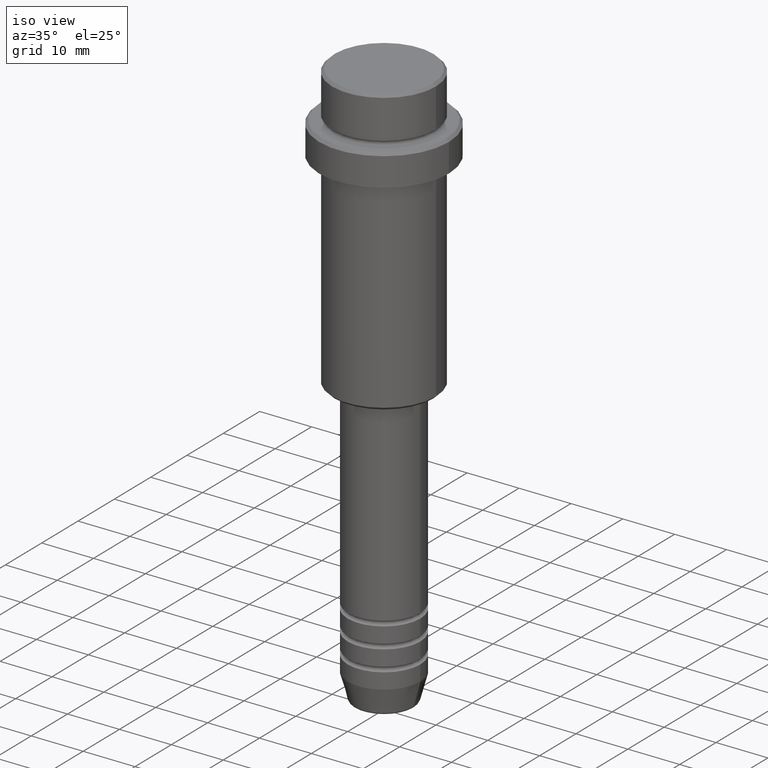
[diagram: clean part render]
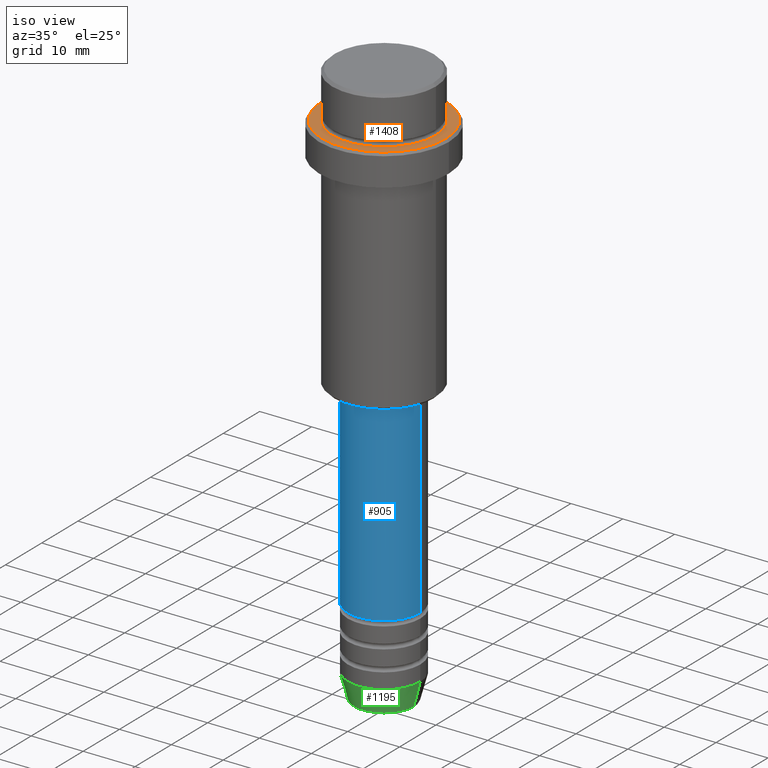
[diagram: same view with three faces highlighted in distinct colors, each labeled with its STEP entity id]
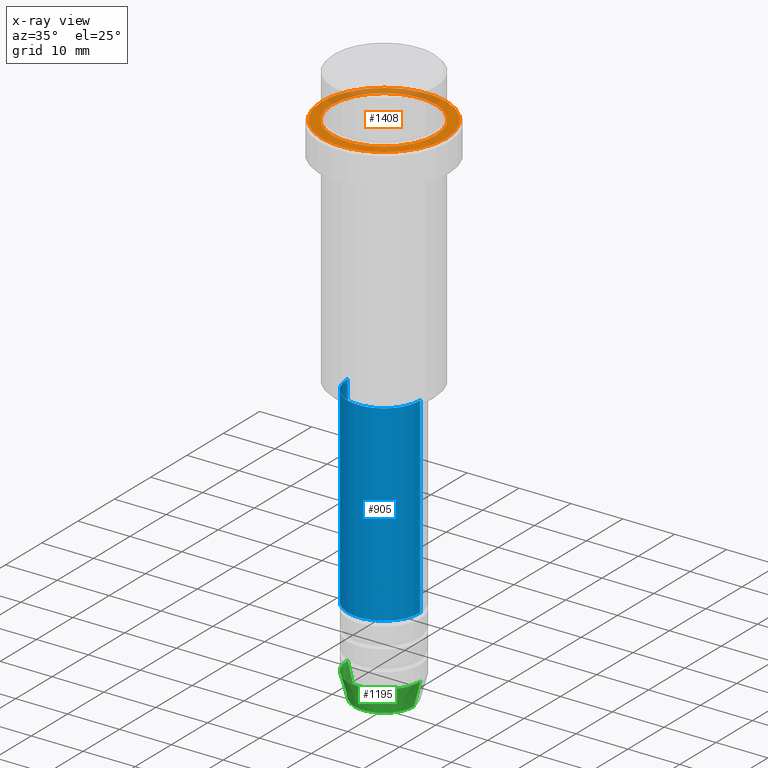
[diagram: x-ray of the same camera — body ghosted, the three highlighted faces saturated]
A machine part, iso view with three faces highlighted in distinct colors.
The next image is the same camera in x-ray (body ghosted, the three faces saturated) — at least one of them is partly hidden behind the body in this view.
Their STEP definitions:

[orange] entity #1408 — the highlighted planar face has unit normal (0, -0, 1).
#121 = ORIENTED_EDGE ( 'NONE', *, *, #700, .T. ) ;
#134 = CIRCLE ( 'NONE', #404, 9.999999999999994671 ) ;
#183 = VERTEX_POINT ( 'NONE', #1393 ) ;
#227 = CARTESIAN_POINT ( 'NONE',  ( 0.000000000000000000, 0.000000000000000000, -9.000000000000001776 ) ) ;
#273 = CIRCLE ( 'NONE', #809, 11.99999999999999645 ) ;
#305 = DIRECTION ( 'NONE',  ( 0.000000000000000000, 0.000000000000000000, -1.000000000000000000 ) ) ;
#350 = ORIENTED_EDGE ( 'NONE', *, *, #1262, .T. ) ;
#367 = DIRECTION ( 'NONE',  ( 1.000000000000000000, 0.000000000000000000, 0.000000000000000000 ) ) ;
#370 = CARTESIAN_POINT ( 'NONE',  ( 0.000000000000000000, 9.499999999999994671, -9.000000000000001776 ) ) ;
#404 = AXIS2_PLACEMENT_3D ( 'NONE', #227, #749, #1093 ) ;
#422 = CIRCLE ( 'NONE', #1137, 9.999999999999994671 ) ;
#500 = CARTESIAN_POINT ( 'NONE',  ( 0.000000000000000000, 0.000000000000000000, -9.000000000000001776 ) ) ;
#510 = DIRECTION ( 'NONE',  ( -0.000000000000000000, -0.000000000000000000, 1.000000000000000000 ) ) ;
#530 = ORIENTED_EDGE ( 'NONE', *, *, #928, .T. ) ;
#561 = DIRECTION ( 'NONE',  ( 1.000000000000000000, 0.000000000000000000, 0.000000000000000000 ) ) ;
#605 = AXIS2_PLACEMENT_3D ( 'NONE', #1156, #510, #1058 ) ;
#666 = FACE_BOUND ( 'NONE', #1019, .T. ) ;
#700 = EDGE_CURVE ( 'NONE', #897, #183, #422, .T. ) ;
#701 = CARTESIAN_POINT ( 'NONE',  ( 0.000000000000000000, 0.000000000000000000, -9.000000000000001776 ) ) ;
#749 = DIRECTION ( 'NONE',  ( 0.000000000000000000, 0.000000000000000000, -1.000000000000000000 ) ) ;
#755 = VERTEX_POINT ( 'NONE', #846 ) ;
#784 = CARTESIAN_POINT ( 'NONE',  ( 9.999999999999994671, 0.000000000000000000, -9.000000000000001776 ) ) ;
#809 = AXIS2_PLACEMENT_3D ( 'NONE', #701, #1144, #367 ) ;
#846 = CARTESIAN_POINT ( 'NONE',  ( 11.99999999999999645, 1.500192328955507537E-15, -9.000000000000001776 ) ) ;
#897 = VERTEX_POINT ( 'NONE', #784 ) ;
#928 = EDGE_CURVE ( 'NONE', #1042, #755, #273, .T. ) ;
#948 = DIRECTION ( 'NONE',  ( 1.000000000000000000, 0.000000000000000000, 0.000000000000000000 ) ) ;
#1019 = EDGE_LOOP ( 'NONE', ( #121, #350 ) ) ;
#1042 = VERTEX_POINT ( 'NONE', #1285 ) ;
#1058 = DIRECTION ( 'NONE',  ( 1.000000000000000000, 0.000000000000000000, 0.000000000000000000 ) ) ;
#1088 = EDGE_CURVE ( 'NONE', #755, #1042, #1223, .T. ) ;
#1093 = DIRECTION ( 'NONE',  ( 1.000000000000000000, 0.000000000000000000, 0.000000000000000000 ) ) ;
#1115 = PLANE ( 'NONE',  #1371 ) ;
#1137 = AXIS2_PLACEMENT_3D ( 'NONE', #500, #305, #948 ) ;
#1144 = DIRECTION ( 'NONE',  ( -0.000000000000000000, -0.000000000000000000, 1.000000000000000000 ) ) ;
#1156 = CARTESIAN_POINT ( 'NONE',  ( 0.000000000000000000, 0.000000000000000000, -9.000000000000001776 ) ) ;
#1223 = CIRCLE ( 'NONE', #605, 11.99999999999999645 ) ;
#1236 = DIRECTION ( 'NONE',  ( 0.000000000000000000, -0.000000000000000000, 1.000000000000000000 ) ) ;
#1262 = EDGE_CURVE ( 'NONE', #183, #897, #134, .T. ) ;
#1285 = CARTESIAN_POINT ( 'NONE',  ( -11.99999999999999645, 0.000000000000000000, -9.000000000000001776 ) ) ;
#1303 = EDGE_LOOP ( 'NONE', ( #530, #1333 ) ) ;
#1333 = ORIENTED_EDGE ( 'NONE', *, *, #1088, .T. ) ;
#1352 = FACE_OUTER_BOUND ( 'NONE', #1303, .T. ) ;
#1371 = AXIS2_PLACEMENT_3D ( 'NONE', #370, #1236, #561 ) ;
#1393 = CARTESIAN_POINT ( 'NONE',  ( -9.999999999999994671, 1.224646799147352665E-15, -9.000000000000001776 ) ) ;
#1408 = ADVANCED_FACE ( 'NONE', ( #1352, #666 ), #1115, .T. ) ;

[blue] entity #905 — the highlighted cylindrical surface (partial cylindrical patch) has radius 7 mm, axis along (-0, -0, 1).
#4 = CARTESIAN_POINT ( 'NONE',  ( -7.000000000000000000, 8.572527594031473190E-16, 0.000000000000000000 ) ) ;
#8 = EDGE_LOOP ( 'NONE', ( #42, #1186, #1198, #1109 ) ) ;
#30 = DIRECTION ( 'NONE',  ( -0.000000000000000000, -0.000000000000000000, 1.000000000000000000 ) ) ;
#32 = DIRECTION ( 'NONE',  ( 1.000000000000000000, 0.000000000000000000, 0.000000000000000000 ) ) ;
#42 = ORIENTED_EDGE ( 'NONE', *, *, #353, .F. ) ;
#54 = CARTESIAN_POINT ( 'NONE',  ( 0.000000000000000000, 0.000000000000000000, 0.000000000000000000 ) ) ;
#78 = EDGE_CURVE ( 'NONE', #891, #708, #560, .T. ) ;
#90 = AXIS2_PLACEMENT_3D ( 'NONE', #54, #567, #695 ) ;
#142 = DIRECTION ( 'NONE',  ( -0.000000000000000000, -0.000000000000000000, 1.000000000000000000 ) ) ;
#156 = CARTESIAN_POINT ( 'NONE',  ( 0.000000000000000000, 0.000000000000000000, -92.99999999999988631 ) ) ;
#246 = DIRECTION ( 'NONE',  ( 1.000000000000000000, 0.000000000000000000, 0.000000000000000000 ) ) ;
#353 = EDGE_CURVE ( 'NONE', #604, #534, #737, .T. ) ;
#459 = CARTESIAN_POINT ( 'NONE',  ( 0.000000000000000000, 0.000000000000000000, -55.99999999999997868 ) ) ;
#469 = FACE_OUTER_BOUND ( 'NONE', #8, .T. ) ;
#534 = VERTEX_POINT ( 'NONE', #596 ) ;
#556 = AXIS2_PLACEMENT_3D ( 'NONE', #156, #142, #32 ) ;
#560 = LINE ( 'NONE', #1342, #1317 ) ;
#567 = DIRECTION ( 'NONE',  ( -0.000000000000000000, -0.000000000000000000, 1.000000000000000000 ) ) ;
#596 = CARTESIAN_POINT ( 'NONE',  ( -7.000000000000000000, 8.572527594031473190E-16, -55.99999999999997868 ) ) ;
#604 = VERTEX_POINT ( 'NONE', #1257 ) ;
#606 = CIRCLE ( 'NONE', #1120, 7.000000000000000000 ) ;
#630 = DIRECTION ( 'NONE',  ( -0.000000000000000000, -0.000000000000000000, 1.000000000000000000 ) ) ;
#693 = DIRECTION ( 'NONE',  ( -0.000000000000000000, -0.000000000000000000, 1.000000000000000000 ) ) ;
#695 = DIRECTION ( 'NONE',  ( 1.000000000000000000, 0.000000000000000000, 0.000000000000000000 ) ) ;
#708 = VERTEX_POINT ( 'NONE', #742 ) ;
#737 = LINE ( 'NONE', #4, #1002 ) ;
#742 = CARTESIAN_POINT ( 'NONE',  ( 7.000000000000000000, 0.000000000000000000, -55.99999999999997868 ) ) ;
#765 = CIRCLE ( 'NONE', #556, 7.000000000000000000 ) ;
#891 = VERTEX_POINT ( 'NONE', #1037 ) ;
#905 = ADVANCED_FACE ( 'NONE', ( #469 ), #1012, .T. ) ;
#930 = EDGE_CURVE ( 'NONE', #604, #891, #765, .T. ) ;
#1002 = VECTOR ( 'NONE', #630, 1000.000000000000000 ) ;
#1012 = CYLINDRICAL_SURFACE ( 'NONE', #90, 7.000000000000000000 ) ;
#1037 = CARTESIAN_POINT ( 'NONE',  ( 7.000000000000000000, 0.000000000000000000, -92.99999999999988631 ) ) ;
#1109 = ORIENTED_EDGE ( 'NONE', *, *, #1332, .F. ) ;
#1120 = AXIS2_PLACEMENT_3D ( 'NONE', #459, #693, #246 ) ;
#1186 = ORIENTED_EDGE ( 'NONE', *, *, #930, .T. ) ;
#1198 = ORIENTED_EDGE ( 'NONE', *, *, #78, .T. ) ;
#1257 = CARTESIAN_POINT ( 'NONE',  ( -7.000000000000000000, 8.572527594031473190E-16, -92.99999999999988631 ) ) ;
#1317 = VECTOR ( 'NONE', #30, 1000.000000000000000 ) ;
#1332 = EDGE_CURVE ( 'NONE', #534, #708, #606, .T. ) ;
#1342 = CARTESIAN_POINT ( 'NONE',  ( 7.000000000000000000, 0.000000000000000000, 0.000000000000000000 ) ) ;

[green] entity #1195 — the highlighted conical surface has half-angle 15 deg.
#18 = CIRCLE ( 'NONE', #1409, 7.000000000000000000 ) ;
#63 = EDGE_CURVE ( 'NONE', #125, #79, #18, .T. ) ;
#72 = DIRECTION ( 'NONE',  ( 1.000000000000000000, 0.000000000000000000, 0.000000000000000000 ) ) ;
#79 = VERTEX_POINT ( 'NONE', #1351 ) ;
#115 = DIRECTION ( 'NONE',  ( -0.000000000000000000, -0.000000000000000000, 1.000000000000000000 ) ) ;
#120 = DIRECTION ( 'NONE',  ( -0.2588190451025213501, 3.169619151431772337E-17, 0.9659258262890680902 ) ) ;
#125 = VERTEX_POINT ( 'NONE', #585 ) ;
#127 = EDGE_LOOP ( 'NONE', ( #993, #716, #555, #133 ) ) ;
#133 = ORIENTED_EDGE ( 'NONE', *, *, #63, .F. ) ;
#167 = CARTESIAN_POINT ( 'NONE',  ( 5.759553456999435994, 0.000000000000000000, -109.6294095225512564 ) ) ;
#186 = EDGE_CURVE ( 'NONE', #435, #79, #944, .T. ) ;
#232 = EDGE_CURVE ( 'NONE', #868, #435, #1199, .T. ) ;
#291 = DIRECTION ( 'NONE',  ( 0.2588190451025213501, 0.000000000000000000, 0.9659258262890680902 ) ) ;
#435 = VERTEX_POINT ( 'NONE', #167 ) ;
#437 = CARTESIAN_POINT ( 'NONE',  ( -7.000000000000000000, 8.572527594031473190E-16, -105.0000000000000142 ) ) ;
#461 = VECTOR ( 'NONE', #291, 1000.000000000000000 ) ;
#555 = ORIENTED_EDGE ( 'NONE', *, *, #186, .T. ) ;
#579 = DIRECTION ( 'NONE',  ( -0.000000000000000000, -0.000000000000000000, 1.000000000000000000 ) ) ;
#585 = CARTESIAN_POINT ( 'NONE',  ( -7.000000000000000000, 8.572527594031473190E-16, -105.0000000000000142 ) ) ;
#636 = LINE ( 'NONE', #437, #914 ) ;
#716 = ORIENTED_EDGE ( 'NONE', *, *, #232, .T. ) ;
#776 = FACE_OUTER_BOUND ( 'NONE', #127, .T. ) ;
#807 = AXIS2_PLACEMENT_3D ( 'NONE', #1056, #951, #72 ) ;
#861 = DIRECTION ( 'NONE',  ( 1.000000000000000000, 0.000000000000000000, 0.000000000000000000 ) ) ;
#868 = VERTEX_POINT ( 'NONE', #987 ) ;
#914 = VECTOR ( 'NONE', #120, 1000.000000000000000 ) ;
#944 = LINE ( 'NONE', #1284, #461 ) ;
#951 = DIRECTION ( 'NONE',  ( -0.000000000000000000, -0.000000000000000000, 1.000000000000000000 ) ) ;
#962 = AXIS2_PLACEMENT_3D ( 'NONE', #1082, #115, #861 ) ;
#983 = CONICAL_SURFACE ( 'NONE', #962, 7.000000000000000000, 0.2617993877991500740 ) ;
#987 = CARTESIAN_POINT ( 'NONE',  ( -5.759553456999435994, 7.812973149831951773E-16, -109.6294095225512564 ) ) ;
#993 = ORIENTED_EDGE ( 'NONE', *, *, #1183, .F. ) ;
#1056 = CARTESIAN_POINT ( 'NONE',  ( 0.000000000000000000, 0.000000000000000000, -109.6294095225512564 ) ) ;
#1082 = CARTESIAN_POINT ( 'NONE',  ( 0.000000000000000000, 0.000000000000000000, -105.0000000000000142 ) ) ;
#1183 = EDGE_CURVE ( 'NONE', #868, #125, #636, .T. ) ;
#1195 = ADVANCED_FACE ( 'NONE', ( #776 ), #983, .T. ) ;
#1199 = CIRCLE ( 'NONE', #807, 5.759553456999435994 ) ;
#1228 = CARTESIAN_POINT ( 'NONE',  ( 0.000000000000000000, 0.000000000000000000, -105.0000000000000142 ) ) ;
#1284 = CARTESIAN_POINT ( 'NONE',  ( 7.000000000000000000, 0.000000000000000000, -105.0000000000000142 ) ) ;
#1328 = DIRECTION ( 'NONE',  ( 1.000000000000000000, 0.000000000000000000, 0.000000000000000000 ) ) ;
#1351 = CARTESIAN_POINT ( 'NONE',  ( 7.000000000000000000, 0.000000000000000000, -105.0000000000000142 ) ) ;
#1409 = AXIS2_PLACEMENT_3D ( 'NONE', #1228, #579, #1328 ) ;